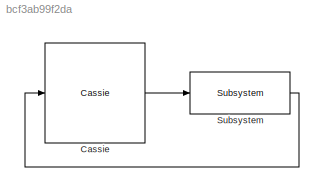
MODEL slx_bcf3ab99f2da
KIND model
CONFIG AbsTol = auto
CONFIG EnableMultiTasking = on
CONFIG FixedStep = 0.0005
CONFIG InitFcn = isSim = 0;\nPreFunctions.CustomInitFcn;
CONFIG MaxStep = auto
CONFIG MinStep = auto
CONFIG RelTol = 1e-3
CONFIG SampleTimeConstraint = Unconstrained
CONFIG Solver = FixedStepDiscrete
CONFIG SolverName = FixedStepDiscrete
CONFIG StartTime = 0.0
CONFIG StopTime = inf
BLOCK [Reference] Cassie  REF=CassieLibrary/RealTime/Cassie
  Ports = [1, 1]
  SourceBlock = CassieLibrary/RealTime/Cassie
BLOCK [Reference] Subsystem  REF=FG_Controller_Library/Subsystem
  Ports = [1, 1]
  SourceBlock = FG_Controller_Library/Subsystem
  SourceType = SubSystem
LINE Cassie:1 -> Subsystem:1
LINE Subsystem:1 -> Cassie:1
